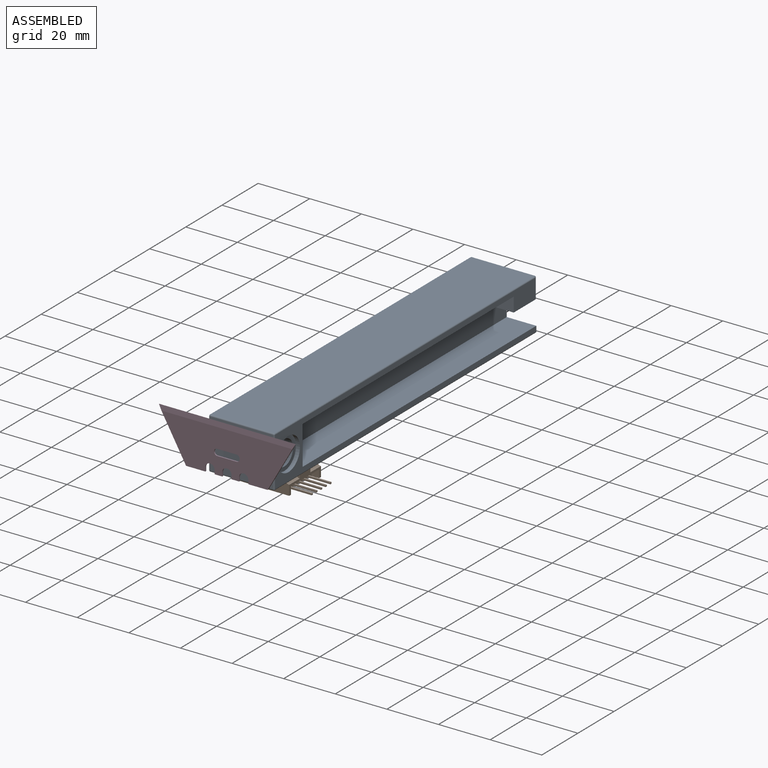
[diagram: assembled view]
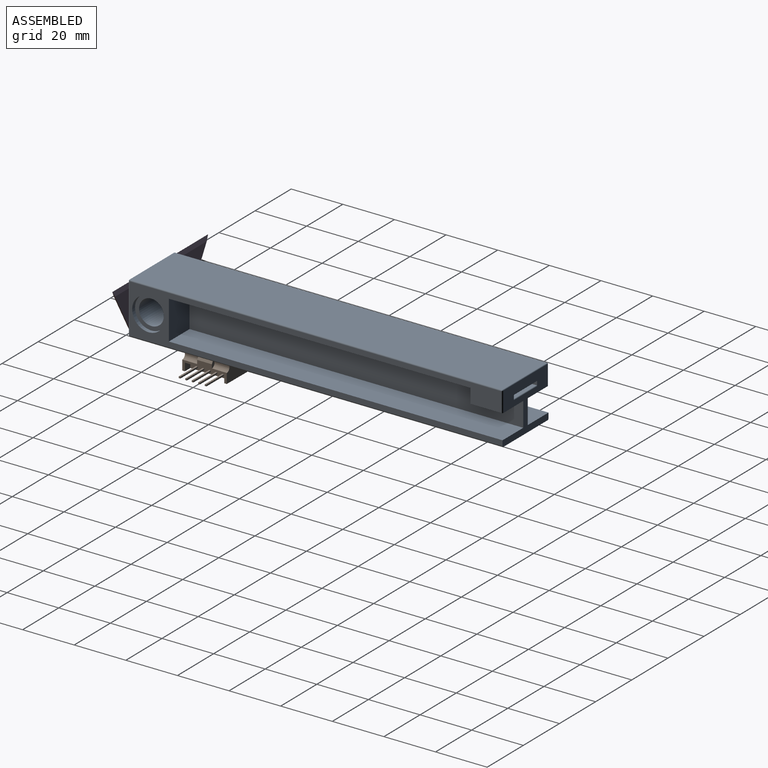
[diagram: assembled view, second angle]
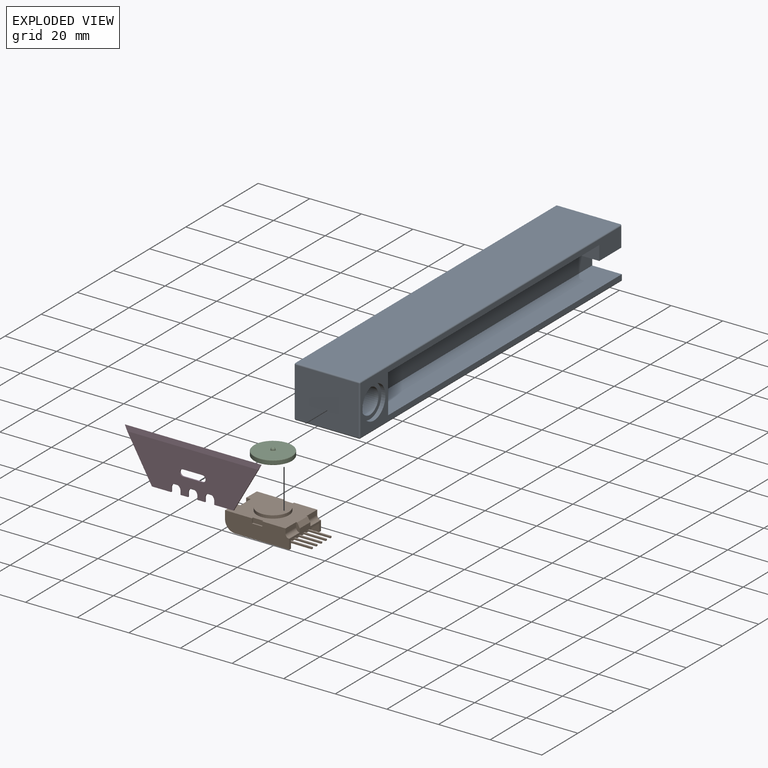
[diagram: exploded view]
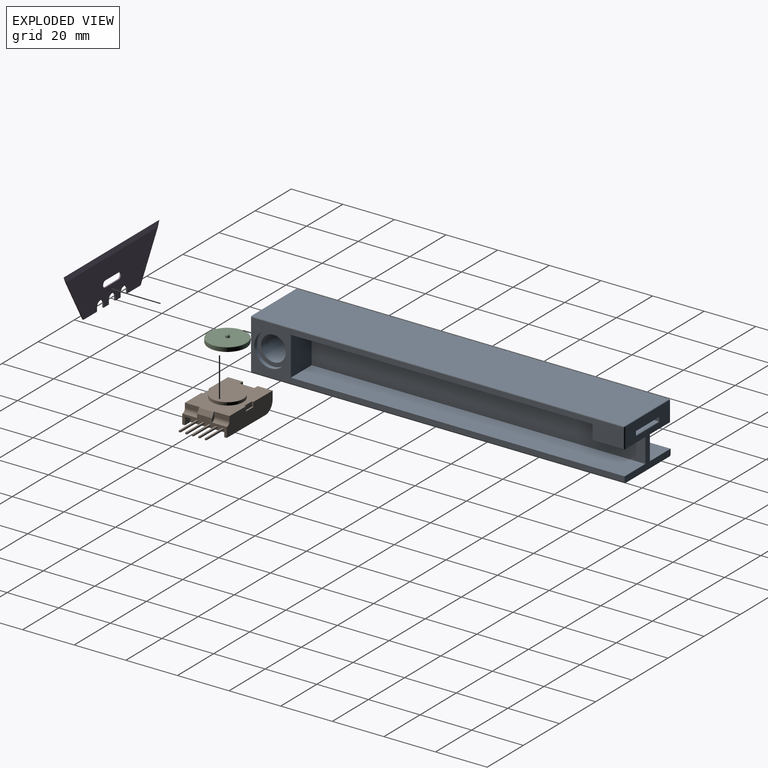
[diagram: exploded view, second angle]
ASSEMBLY  parts=4 mates=4
PART A: 52 faces, bbox 25.4x145x20 mm
  f0: cylinder r=4.8mm len=22.25mm, axis (1,0,0), area 671.1mm2, adj f17,f51
  f1: plane 12.83x9.7mm, normal (0,0,1), area 124.4mm2, adj f19,f24,f25,f32
  f2: plane 116.8x11.46mm, normal (0,0,-1), area 1338.9mm2, adj f3,f8,f15,f23
  f3: plane 129.3x15mm, normal (-1,0,0), area 1869.6mm2, adj f2,f5,f12,f15,f22,f23
  f4: plane 116.8x11.46mm, normal (0,0,-1), area 1338.9mm2, adj f10,f11,f14,f21
  f5: plane 129.3x11.46mm, normal (0,0,1), area 1482.2mm2, adj f3,f8,f12,f15
  f6: plane 129.3x11.46mm, normal (0,0,1), area 1482.2mm2, adj f10,f11,f12,f14
  f7: plane 144.2x24.43mm, normal (0,0,1), area 3522.2mm2, adj f33,f38,f44,f47
  f8: plane 144.5x19mm, normal (-1,0,0), area 745.4mm2, adj f2,f5,f12,f15,f22,f23,f41,f45
  f9: plane 144.5x24.43mm, normal (0,0,-1), area 3516mm2, adj f12,f29,f30,f31,f35,f40,f41
  f10: plane 129.3x15mm, normal (1,0,0), area 1869.6mm2, adj f4,f6,f12,f14,f18,f21
  f11: plane 144.5x19mm, normal (1,0,0), area 745.4mm2, adj f4,f6,f12,f14,f16,f18,f21,f34
  f12: plane 25.43x19.7mm, normal (0,1,0), area 253mm2, adj f3,f5,f6,f8,f9,f10,f11,f18
  f13: plane 24.43x19mm, normal (0,-1,0), area 464.1mm2, adj f39,f40,f44,f45
  f14: plane 15x11.46mm, normal (0,1,0), area 171.9mm2, adj f4,f6,f10,f11
  f15: plane 15x11.46mm, normal (0,1,0), area 171.9mm2, adj f2,f3,f5,f8
  f16: cylinder r=6.35mm len=12.7mm, axis (1,0,0), area 63.3mm2, adj f11,f17
  f17: plane 12.7x12.7mm, normal (1,0,0), area 54.3mm2, adj f0,f16
  f18: plane 12.5x11.46mm, normal (0,0,-1), area 143.2mm2, adj f10,f11,f12,f21,f34
  f19: plane 12.83x1.59mm, normal (0,1,0), area 20.4mm2, adj f1,f20,f24,f25
  f20: plane 12.83x10mm, normal (0,0,-1), area 128.3mm2, adj f12,f19,f24,f25
  f21: plane 11.46x5.59mm, normal (0,-1,0), area 64.1mm2, adj f4,f10,f11,f18
  f22: plane 12.5x11.46mm, normal (0,0,-1), area 143.2mm2, adj f3,f8,f12,f23,f49
  f23: plane 11.46x5.59mm, normal (0,-1,0), area 64.1mm2, adj f2,f3,f8,f22
  f24: plane 10x1.89mm, normal (-1,0,0), area 15.9mm2, adj f1,f12,f19,f20,f32
  f25: plane 10x1.89mm, normal (1,0,0), area 15.9mm2, adj f1,f12,f19,f20,f32
  f26: plane 0.14x0.14mm, normal (0,0,-1), area 0mm2, adj f29
  f27: plane 0.14x0.14mm, normal (0,0,-1), area 0mm2, adj f30
  f28: plane 0.14x0.14mm, normal (0,0,-1), area 0mm2, adj f31
  f29: torus R=0.07mm, axis (0,0,1), area 6.7mm2, adj f9,f26
  f30: torus R=0.07mm, axis (0,0,1), area 6.7mm2, adj f9,f27
  f31: torus R=0.07mm, axis (0,0,1), area 6.7mm2, adj f9,f28
  f32: cylinder r=0.3mm len=12.83mm, axis (1,0,0), area 6mm2, adj f1,f12,f24,f25
  f33: cylinder r=0.3mm len=24.43mm, axis (1,0,0), area 11.5mm2, adj f7,f12,f36,f48
  f34: cylinder r=0.5mm len=7.79mm, axis (0,0,-1), area 6.1mm2, adj f11,f12,f18,f36
  f35: cylinder r=0.5mm len=144.5mm, axis (0,1,0), area 113.5mm2, adj f9,f11,f12,f37
  f36: bspline ~0.6x0.5mm, area 0.2mm2, adj f33,f34,f38
  f37: sphere r=0.5mm, area 0.4mm2, adj f35,f39,f40
  f38: cylinder r=0.5mm len=144.2mm, axis (0,1,0), area 113.2mm2, adj f7,f11,f36,f42
  f39: cylinder r=0.5mm len=19mm, axis (0,0,1), area 14.9mm2, adj f11,f13,f37,f42
  f40: cylinder r=0.5mm len=24.43mm, axis (1,0,0), area 19.2mm2, adj f9,f13,f37,f43
  f41: cylinder r=0.5mm len=144.5mm, axis (0,-1,0), area 113.5mm2, adj f8,f9,f12,f43
  f42: sphere r=0.5mm, area 0.4mm2, adj f38,f39,f44
  f43: sphere r=0.5mm, area 0.4mm2, adj f40,f41,f45
  f44: cylinder r=0.5mm len=24.43mm, axis (-1,0,0), area 19.2mm2, adj f7,f13,f42,f46
  f45: cylinder r=0.5mm len=19mm, axis (0,0,-1), area 14.9mm2, adj f8,f13,f43,f46
  f46: sphere r=0.5mm, area 0.4mm2, adj f44,f45,f47
  f47: cylinder r=0.5mm len=144.2mm, axis (0,-1,0), area 113.2mm2, adj f7,f8,f46,f48
  f48: bspline ~0.6x0.5mm, area 0.2mm2, adj f33,f47,f49
  f49: cylinder r=0.5mm len=7.79mm, axis (0,0,1), area 6.1mm2, adj f8,f12,f22,f48
  f50: cylinder r=6.35mm len=12.7mm, axis (-1,0,0), area 63.3mm2, adj f8,f51
  f51: plane 12.7x12.7mm, normal (-1,0,0), area 54.3mm2, adj f0,f50
PART B: 58 faces, bbox 31.5x17.4x8.3 mm
  f0: plane 23.98x17.36mm, normal (0,0,1), area 277.7mm2, adj f1,f2,f5,f7,f9,f11,f12,f13
  f1: plane 25.02x7.1mm, normal (0,1,0), area 162.8mm2, adj f0,f3,f6,f7,f8,f17,f20,f54
  f2: plane 25.02x7.1mm, normal (0,-1,0), area 162.8mm2, adj f0,f3,f5,f6,f8,f15,f19,f50
  f3: plane 17.36x5.3mm, normal (-1,0,0), area 28.3mm2, adj f1,f2,f8,f16,f18,f19,f20,f21
  f4: plane 15.36x3.05mm, normal (-1,0,0), area 44.9mm2, adj f8,f21,f22,f23,f24,f25,f26,f27
  f5: plane 5.83x3.16mm, normal (1,0,0), area 18.4mm2, adj f0,f2,f6,f11
  f6: cylinder r=3.94mm len=17.36mm, axis (0,-1,0), area 106mm2, adj f1,f2,f5,f7,f8,f11,f12,f14
  f7: plane 5.83x3.16mm, normal (1,0,0), area 18.4mm2, adj f0,f1,f6,f12
  f8: plane 21.08x17.36mm, normal (0,0,-1), area 319.9mm2, adj f1,f2,f3,f4,f6,f21,f23
  f9: cylinder r=6.15mm len=12.3mm, axis (0,0,-1), area 44.4mm2, adj f0,f10
  f10: plane 12.3x12.3mm, normal (0,0,1), area 118.8mm2, adj f9
  f11: plane 3.44x1.81mm, normal (0,1,0), area 6.1mm2, adj f0,f5,f6,f13,f14
  f12: plane 3.44x1.81mm, normal (0,-1,0), area 6.1mm2, adj f0,f6,f7,f13,f14
  f13: plane 5.7x3.42mm, normal (1,0,0), area 19.5mm2, adj f0,f11,f12,f14
  f14: plane 5.72x1.81mm, normal (0,0,1), area 10.2mm2, adj f6,f11,f12,f13
  f15: plane 5.81x1.8mm, normal (-1,0,0), area 10.5mm2, adj f0,f2,f16,f19
  f16: plane 3.25x1.45mm, normal (0,-1,0), area 3.3mm2, adj f0,f3,f15,f19,f49
  f17: plane 5.81x1.8mm, normal (-1,0,0), area 10.5mm2, adj f0,f1,f18,f20
  f18: plane 3.25x1.45mm, normal (0,1,0), area 3.3mm2, adj f0,f3,f17,f20,f49
  f19: cylinder r=1.45mm len=5.81mm, axis (0,-1,0), area 13.2mm2, adj f2,f3,f15,f16
  f20: cylinder r=1.45mm len=5.81mm, axis (0,1,0), area 13.2mm2, adj f1,f3,f17,f18
  f21: plane 3.05x3mm, normal (0,1,0), area 9.2mm2, adj f3,f4,f8,f22
  f22: plane 15.36x3mm, normal (0,0,-1), area 46.1mm2, adj f3,f4,f21,f23
  f23: plane 3.05x3mm, normal (0,-1,0), area 9.2mm2, adj f3,f4,f8,f22
  f24: plane 9.48x0.63mm, normal (0,0,1), area 6mm2, adj f4,f25,f27,f28
  f25: plane 9.48x0.61mm, normal (0,1,0), area 5.8mm2, adj f4,f24,f26,f28
  f26: plane 9.48x0.63mm, normal (0,0,-1), area 6mm2, adj f4,f25,f27,f28
  f27: plane 9.48x0.61mm, normal (0,-1,0), area 5.8mm2, adj f4,f24,f26,f28
  f28: plane 0.63x0.61mm, normal (-1,0,0), area 0.4mm2, adj f24,f25,f26,f27
  f29: plane 9.48x0.63mm, normal (0,0,1), area 6mm2, adj f4,f30,f32,f33
  f30: plane 9.48x0.61mm, normal (0,1,0), area 5.8mm2, adj f4,f29,f31,f33
  f31: plane 9.48x0.63mm, normal (0,0,-1), area 6mm2, adj f4,f30,f32,f33
  f32: plane 9.48x0.61mm, normal (0,-1,0), area 5.8mm2, adj f4,f29,f31,f33
  f33: plane 0.63x0.61mm, normal (-1,0,0), area 0.4mm2, adj f29,f30,f31,f32
  f34: plane 9.48x0.61mm, normal (0,1,0), area 5.8mm2, adj f4,f35,f37,f38
  f35: plane 9.48x0.63mm, normal (0,0,-1), area 6mm2, adj f4,f34,f36,f38
  f36: plane 9.48x0.61mm, normal (0,-1,0), area 5.8mm2, adj f4,f35,f37,f38
  f37: plane 9.48x0.63mm, normal (0,0,1), area 6mm2, adj f4,f34,f36,f38
  f38: plane 0.63x0.61mm, normal (-1,0,0), area 0.4mm2, adj f34,f35,f36,f37
  f39: plane 9.48x0.61mm, normal (0,1,0), area 5.8mm2, adj f4,f40,f42,f43
  f40: plane 9.48x0.63mm, normal (0,0,-1), area 6mm2, adj f4,f39,f41,f43
  f41: plane 9.48x0.61mm, normal (0,-1,0), area 5.8mm2, adj f4,f40,f42,f43
  f42: plane 9.48x0.63mm, normal (0,0,1), area 6mm2, adj f4,f39,f41,f43
  f43: plane 0.63x0.61mm, normal (-1,0,0), area 0.4mm2, adj f39,f40,f41,f42
  f44: plane 9.48x0.61mm, normal (0,1,0), area 5.8mm2, adj f4,f45,f47,f48
  f45: plane 9.48x0.63mm, normal (0,0,-1), area 6mm2, adj f4,f44,f46,f48
  f46: plane 9.48x0.61mm, normal (0,-1,0), area 5.8mm2, adj f4,f45,f47,f48
  f47: plane 9.48x0.63mm, normal (0,0,1), area 6mm2, adj f4,f44,f46,f48
  f48: plane 0.63x0.61mm, normal (-1,0,0), area 0.4mm2, adj f44,f45,f46,f47
  f49: plane 5.74x1.8mm, normal (-0.87,0,0.5), area 11.9mm2, adj f0,f3,f16,f18
  f50: plane 4x0.6mm, normal (0,0,1), area 2.4mm2, adj f2,f51,f52,f53
  f51: plane 1.8x0.6mm, normal (-1,0,0), area 1.1mm2, adj f0,f2,f50,f52
  f52: plane 4x1.8mm, normal (0,-1,0), area 7.2mm2, adj f0,f50,f51,f53
  f53: plane 1.8x0.6mm, normal (1,0,0), area 1.1mm2, adj f0,f2,f50,f52
  f54: plane 4x0.6mm, normal (0,0,1), area 2.4mm2, adj f1,f55,f56,f57
  f55: plane 1.8x0.6mm, normal (-1,0,0), area 1.1mm2, adj f0,f1,f54,f57
  f56: plane 1.8x0.6mm, normal (1,0,0), area 1.1mm2, adj f0,f1,f54,f57
  f57: plane 4x1.8mm, normal (0,1,0), area 7.2mm2, adj f0,f54,f55,f56
PART C: 11 faces, bbox 15.9x15.9x3 mm
  f0: plane 14.3x14.3mm, normal (0,0,1), area 156.8mm2, adj f7,f10
  f1: cylinder r=7.35mm len=14.7mm, axis (0,0,-1), area 64.7mm2, adj f7,f8
  f2: plane 14.3x14.3mm, normal (0,0,-1), area 25.8mm2, adj f8,f9
  f3: cylinder r=6.35mm len=12.7mm, axis (0,0,-1), area 23.9mm2, adj f4,f9
  f4: plane 12.7x12.7mm, normal (0,0,-1), area 126.7mm2, adj f3
  f5: sphere r=0.8mm, area 4mm2, adj f6
  f6: cylinder r=0.8mm len=1.6mm, axis (0,0,-1), area 0.5mm2, adj f5,f10
  f7: torus R=7.15mm, axis (0,0,-1), area 14.4mm2, adj f0,f1
  f8: torus R=7.15mm, axis (0,0,1), area 14.4mm2, adj f1,f2
  f9: torus R=6.55mm, axis (0,0,1), area 12.7mm2, adj f2,f3
  f10: torus R=1.1mm, axis (0,0,-1), area 2.7mm2, adj f0,f6
PART D: 23 faces, bbox 53x0.5x18.8 mm
  f0: plane 18.8x10.7mm, normal (-0.87,0,0.49), area 10.2mm2, adj f11,f19,f20,f21,f22
  f1: plane 18.8x10.7mm, normal (0.87,0,0.49), area 10.2mm2, adj f12,f19,f20,f21,f22
  f2: plane 1.5x0.5mm, normal (1,0,0), area 0.8mm2, adj f3,f18,f19,f20
  f3: plane 2.94x0.5mm, normal (0,0,1), area 1.5mm2, adj f2,f4,f19,f20
  f4: plane 1.5x0.5mm, normal (-1,0,0), area 0.8mm2, adj f3,f5,f19,f20
  f5: cylinder r=1.8mm len=3.6mm, axis (0,1,0), area 2.8mm2, adj f4,f6,f19,f20
  f6: plane 1.5x0.5mm, normal (1,0,0), area 0.8mm2, adj f5,f7,f19,f20
  f7: plane 2.94x0.5mm, normal (0,0,1), area 1.5mm2, adj f6,f8,f19,f20
  f8: plane 1.5x0.5mm, normal (-1,0,0), area 0.8mm2, adj f7,f9,f19,f20
  f9: cylinder r=1.8mm len=3.6mm, axis (0,1,0), area 2.8mm2, adj f8,f10,f19,f20
  f10: plane 1.5x0.5mm, normal (1,0,0), area 0.8mm2, adj f9,f11,f19,f20
  f11: plane 7.46x0.5mm, normal (0,0,1), area 3.7mm2, adj f0,f10,f19,f20
  f12: plane 7.46x0.5mm, normal (0,0,1), area 3.7mm2, adj f1,f13,f19,f20
  f13: plane 1.5x0.5mm, normal (-1,0,0), area 0.8mm2, adj f12,f18,f19,f20
  f14: cylinder r=1.26mm len=2.52mm, axis (0,1,0), area 2mm2, adj f15,f17,f19,f20
  f15: plane 7.42x0.5mm, normal (0,0,1), area 3.7mm2, adj f14,f16,f19,f20
  f16: cylinder r=1.26mm len=2.52mm, axis (0,1,0), area 2mm2, adj f15,f17,f19,f20
  f17: plane 7.42x0.5mm, normal (0,0,-1), area 3.7mm2, adj f14,f16,f19,f20
  f18: cylinder r=1.8mm len=3.6mm, axis (0,1,0), area 2.8mm2, adj f2,f13,f19,f20
  f19: plane 50.72x16.8mm, normal (0,-1,0), area 636.4mm2, adj f0,f1,f2,f3,f4,f5,f6,f7
  f20: plane 50.72x16.8mm, normal (0,1,0), area 636.4mm2, adj f0,f1,f2,f3,f4,f5,f6,f7
  f21: plane 53x2mm, normal (0,-0.99,-0.12), area 104.5mm2, adj f0,f1,f19,f22
  f22: plane 53x2mm, normal (0,0.99,-0.12), area 104.5mm2, adj f0,f1,f20,f21
PLACE A t=(9.4,-0.68,-25.05)mm fixed
PLACE B rot(axis=(0,0,1),179.4deg) t=(29.04,33.42,-27.6)mm
PLACE C rot(axis=(0,0,1),90deg) t=(16.44,24.86,-26.45)mm
PLACE D rot(axis=(0,1,0),180deg) t=(43.3,-0.68,-6.25)mm
MATE cylindrical B.f9 <-> C.f1  axis (0,0,1) through (16.44,24.86,-26.45)mm
MATE planar D.f20 <-> A.f13  axis (0,1,0) through (16.8,-0.68,-15.58)mm
MATE planar B.f9 <-> C.f1  axis (0,0,1) through (16.44,24.86,-26.45)mm
MATE parallel C.f1 <-> A.f9  axis (0,0,1) through (16.44,24.86,-25.45)mm
